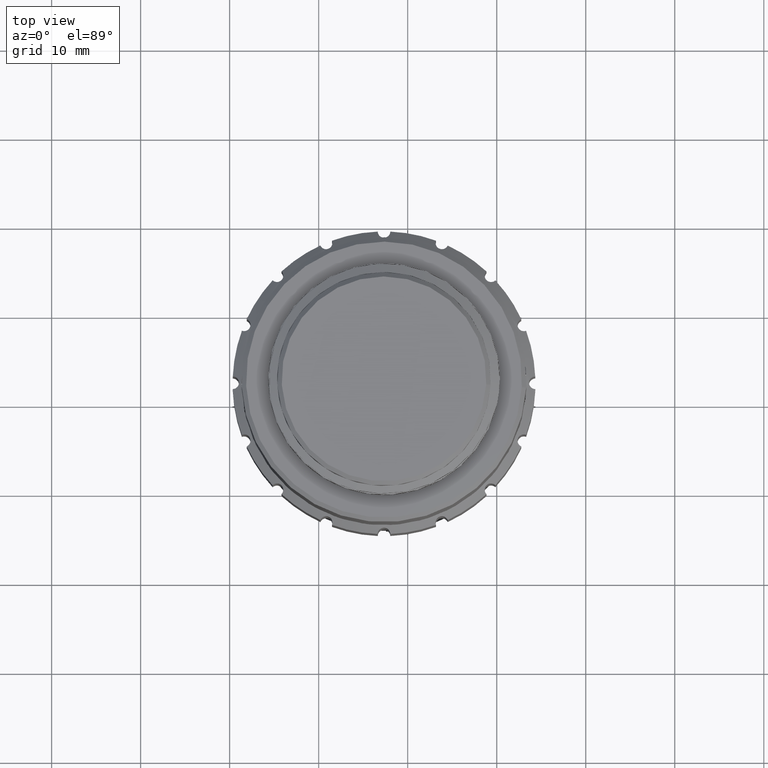
[diagram: clean part render]
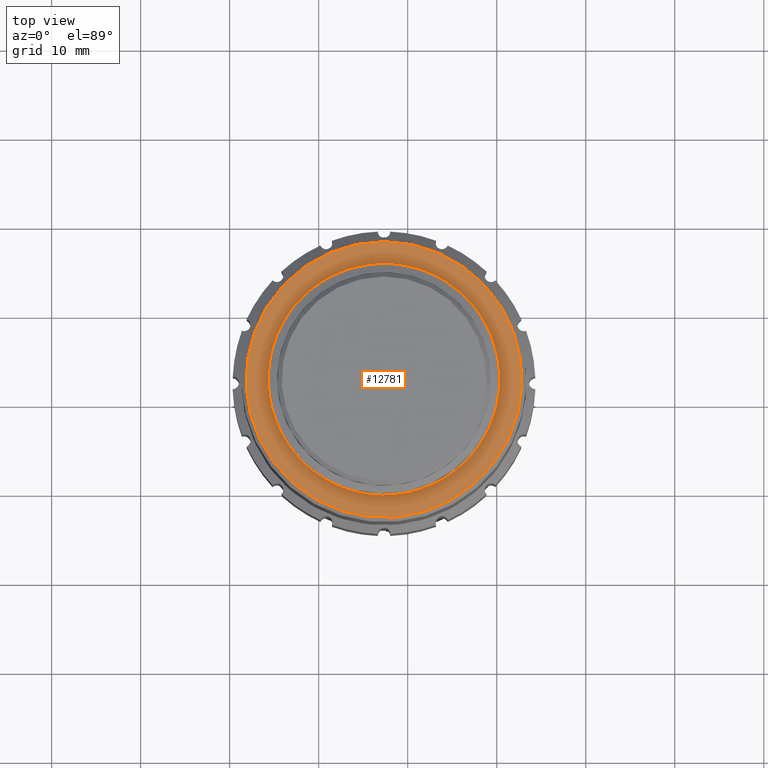
[diagram: same view with one face highlighted and labeled with its STEP entity id]
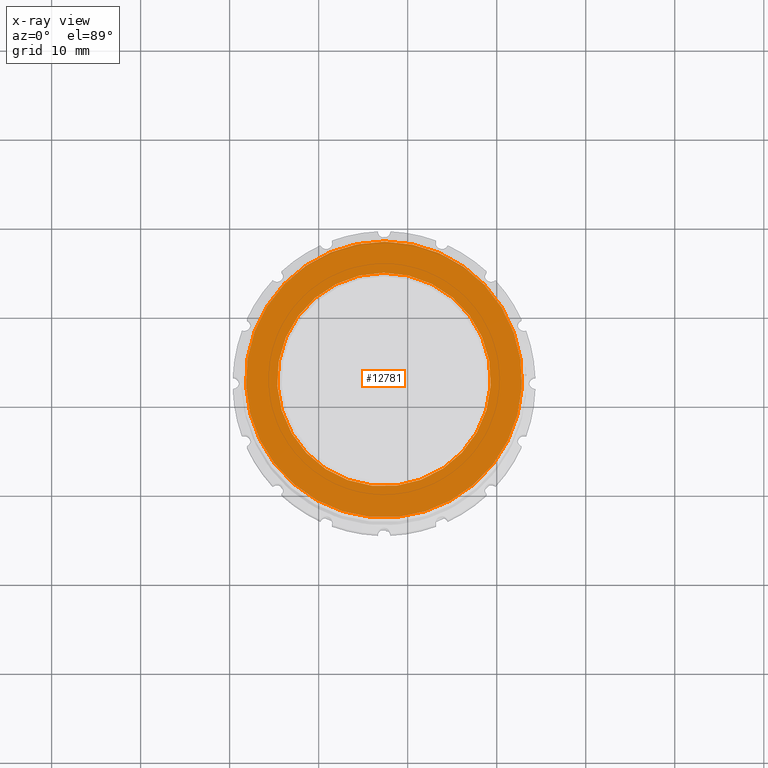
[diagram: x-ray of the same camera — body ghosted, the highlighted face saturated]
A machine part, top view. The second image highlights one B-rep face of the part: STEP entity #12781.
The next image is the same camera in x-ray: the body ghosted, the highlighted face saturated — about 0% of this face is hidden behind the body in this view.
In plain terms, the highlighted planar face has unit normal (0, 0, 1).
Its self-contained STEP definition (entity closure, byte-faithful):
#1408 = EDGE_LOOP ( 'NONE', ( #14155 ) ) ;
#1557 = DIRECTION ( 'NONE',  ( 0.000000000000000000, 0.000000000000000000, 1.000000000000000000 ) ) ;
#2043 = EDGE_CURVE ( 'NONE', #6275, #6275, #8162, .T. ) ;
#2798 = AXIS2_PLACEMENT_3D ( 'NONE', #6685, #1557, #13372 ) ;
#3024 = EDGE_LOOP ( 'NONE', ( #11367 ) ) ;
#3450 = PLANE ( 'NONE',  #10914 ) ;
#4789 = FACE_OUTER_BOUND ( 'NONE', #1408, .T. ) ;
#6275 = VERTEX_POINT ( 'NONE', #7855 ) ;
#6685 = CARTESIAN_POINT ( 'NONE',  ( -122.6630341068842824, 22.01530283243863906, 27.09225607790693857 ) ) ;
#7855 = CARTESIAN_POINT ( 'NONE',  ( -107.1863048931164997, 21.16627230076927901, 27.09225607790693857 ) ) ;
#8162 = CIRCLE ( 'NONE', #2798, 15.50000000000000355 ) ;
#8915 = CARTESIAN_POINT ( 'NONE',  ( -122.6630341068842824, 22.01530283243863906, 27.09225607790693857 ) ) ;
#9691 = DIRECTION ( 'NONE',  ( 0.9984986589527604650, -0.05477616333350729394, 0.000000000000000000 ) ) ;
#10066 = DIRECTION ( 'NONE',  ( 0.9984986589527603540, -0.05477616333350730782, 0.000000000000000000 ) ) ;
#10235 = VERTEX_POINT ( 'NONE', #14273 ) ;
#10754 = DIRECTION ( 'NONE',  ( 0.000000000000000000, 0.000000000000000000, 1.000000000000000000 ) ) ;
#10914 = AXIS2_PLACEMENT_3D ( 'NONE', #8915, #16564, #10066 ) ;
#11367 = ORIENTED_EDGE ( 'NONE', *, *, #14128, .F. ) ;
#11763 = CIRCLE ( 'NONE', #12049, 12.00000000000000533 ) ;
#12049 = AXIS2_PLACEMENT_3D ( 'NONE', #16362, #10754, #9691 ) ;
#12781 = ADVANCED_FACE ( 'NONE', ( #4789, #15503 ), #3450, .T. ) ;
#13372 = DIRECTION ( 'NONE',  ( 0.9984986589527603540, -0.05477616333350721067, 0.000000000000000000 ) ) ;
#14128 = EDGE_CURVE ( 'NONE', #10235, #10235, #11763, .T. ) ;
#14155 = ORIENTED_EDGE ( 'NONE', *, *, #2043, .T. ) ;
#14273 = CARTESIAN_POINT ( 'NONE',  ( -110.6810501994511498, 21.35798887243655031, 27.09225607790693857 ) ) ;
#15503 = FACE_BOUND ( 'NONE', #3024, .T. ) ;
#16362 = CARTESIAN_POINT ( 'NONE',  ( -122.6630341068842824, 22.01530283243863906, 27.09225607790693857 ) ) ;
#16564 = DIRECTION ( 'NONE',  ( 0.000000000000000000, 0.000000000000000000, 1.000000000000000000 ) ) ;